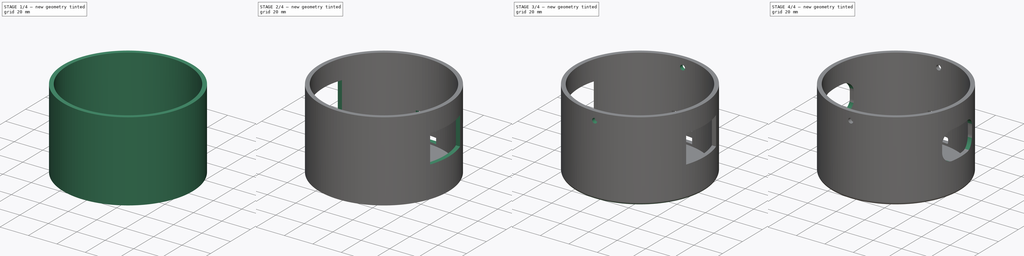
[diagram: build sequence overview — one tinted view per stage of 4, left to right]
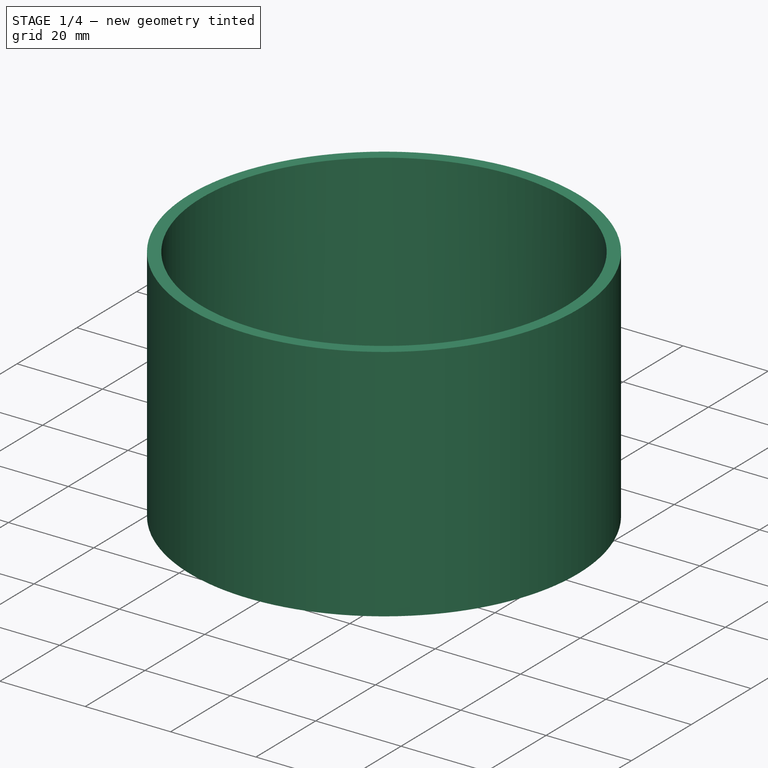
[diagram: stage 1 of 4 — iso view after this stage's code; geometry added in this stage tinted green]
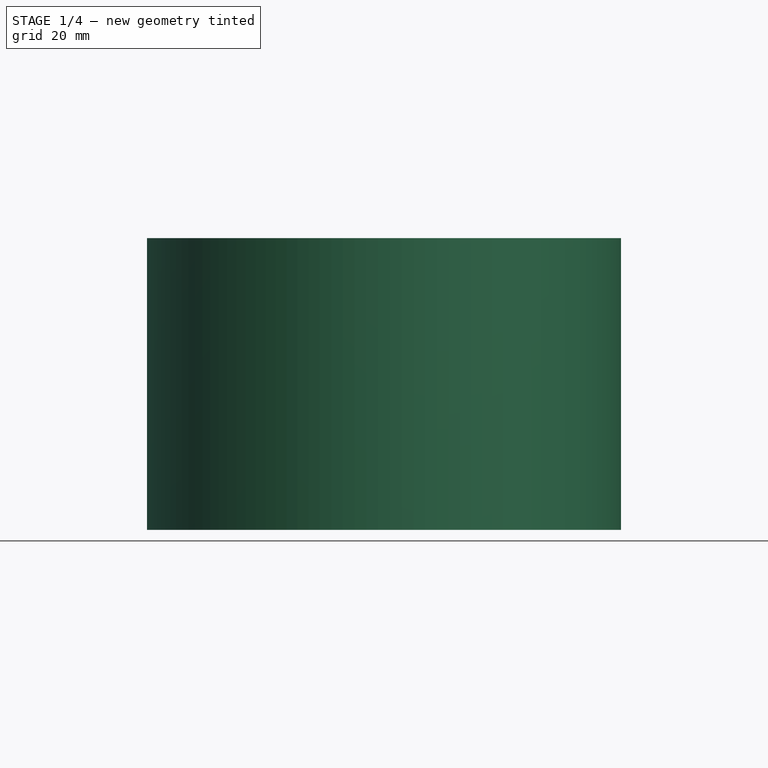
[diagram: stage 1 of 4 — front view after this stage's code; geometry added in this stage tinted green]
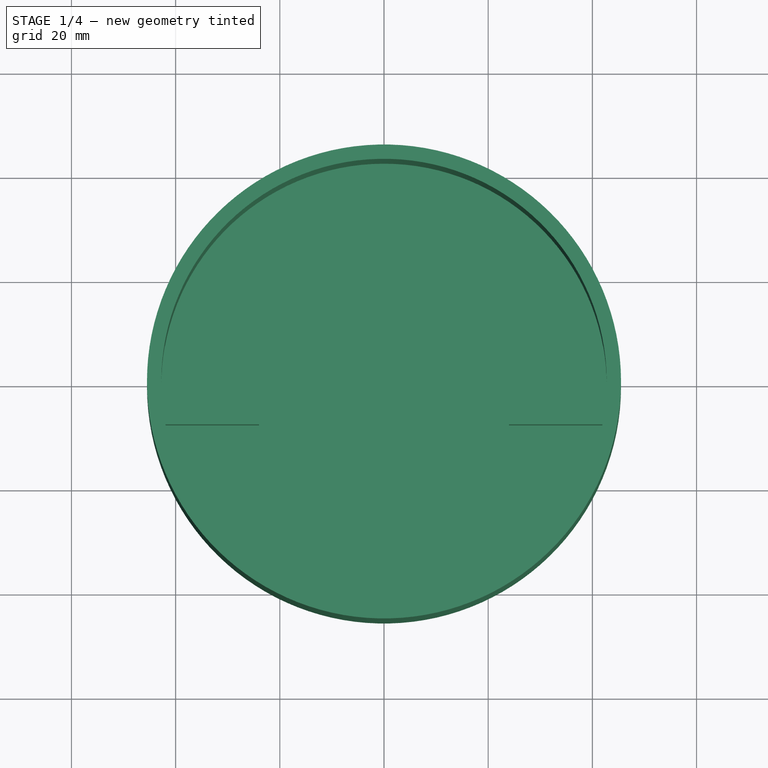
[diagram: stage 1 of 4 — top view after this stage's code; geometry added in this stage tinted green]
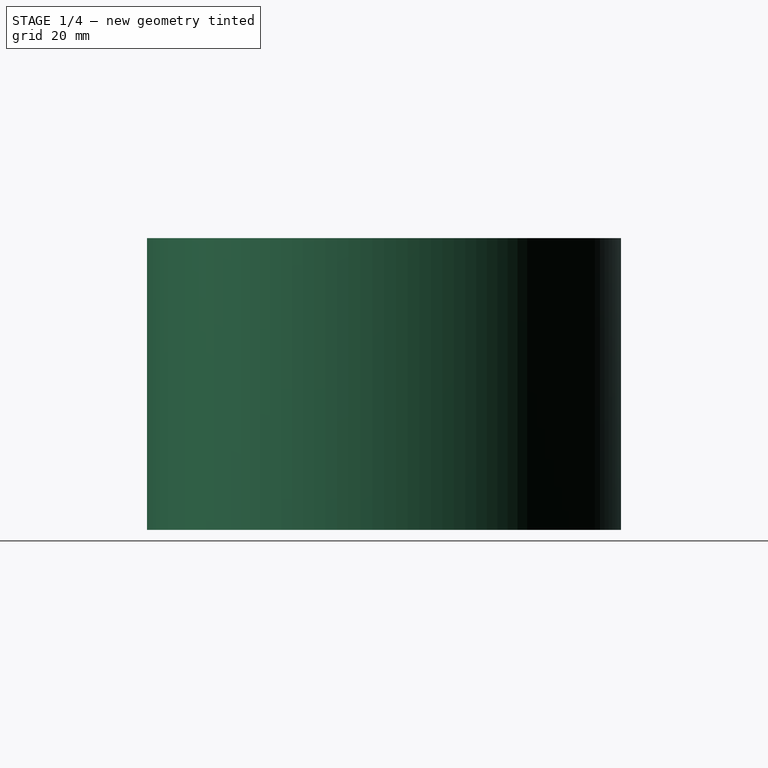
[diagram: stage 1 of 4 — right view after this stage's code; geometry added in this stage tinted green]
FCSTD DOCUMENT  (FreeCAD 1.0R39109 (Git))
Label: luxo_base
License: All rights reserved
LicenseURL: https://en.wikipedia.org/wiki/All_rights_reserved
objects: Sketcher::SketchObject×8, PartDesign::Pocket×5, PartDesign::Fillet×4, PartDesign::Pad×3, PartDesign::Body×1
note: 53 computed .brp shape members not serialized (recipe doc carries the construction recipe); baked Part::Feature solids carry a one-line shape summary decoded from their .brp

FEATURE [Sketcher::SketchObject] Sketch  label="Sketch_Body"
  ArcFitTolerance = 1e-06
  AttachmentSupport = -> [XY_Plane]
  FullyConstrained = true
  MakeInternals = false
  MapMode = 5
  sketch-geometry (2):
    g0: Circle [constr] CenterX=0 CenterY=0 CenterZ=0 NormalX=0 NormalY=0 NormalZ=1 AngleXU=0 Radius=42.5
    g1: Circle CenterX=0 CenterY=0 CenterZ=0 NormalX=0 NormalY=0 NormalZ=1 AngleXU=0 Radius=45.5
  constraints (5):
    c: Diameter(g0) = 85
    c: Coincident(g0,g-1)
    c: Diameter(g1) = 91
    c: Coincident(g1,g0)
    c: Distance(g0,g1) = 3
FEATURE [PartDesign::Pad] Pad  label="001_Body"
  Direction = (0,0,1)
  Length = 56
  Length2 = 10
  Profile = -> Sketch
  ReferenceAxis = -> Sketch [N_Axis]
  Refine = true
  Suppressed = false
  Type = 0
FEATURE [Sketcher::SketchObject] Sketch001  label="Sketch_Wall"
  ArcFitTolerance = 1e-06
  AttachmentSupport = -> [Pad]
  FullyConstrained = true
  MakeInternals = false
  MapMode = 5
  Placement = pos=(0,0,56) rot=(0,0,1;0rad)
  sketch-geometry (1):
    g0: Circle CenterX=0 CenterY=0 CenterZ=0 NormalX=0 NormalY=0 NormalZ=1 AngleXU=0 Radius=42.75
  constraints (2):
    c: Diameter(g0) = 85.5
    c: Coincident(g0,g-1)
FEATURE [PartDesign::Pocket] Pocket  label="002_Wall"
  BaseFeature = -> Pad
  Direction = (0,0,-1)
  Length = 54
  Length2 = 5
  Profile = -> Sketch001
  ReferenceAxis = -> Sketch001 [N_Axis]
  Refine = true
  Suppressed = false
  Type = 0
FEATURE [Sketcher::SketchObject] Sketch002  label="Sketch_LandingPad"
  ArcFitTolerance = 1e-06
  AttachmentSupport = -> [Pocket]
  FullyConstrained = true
  MakeInternals = false
  MapMode = 5
  Placement = pos=(0,0,2) rot=(0,0,1;0rad)
  sketch-geometry (10):
    g0: LineSegment StartX=-44 StartY=-7.5 StartZ=0 EndX=-24 EndY=-7.5 EndZ=0
    g1: LineSegment StartX=-24 StartY=-7.5 StartZ=0 EndX=-24 EndY=7.5 EndZ=0
    g2: LineSegment StartX=-24 StartY=7.5 StartZ=0 EndX=-44 EndY=7.5 EndZ=0
    g3: LineSegment StartX=-44 StartY=7.5 StartZ=0 EndX=-44 EndY=-7.5 EndZ=0
    g4: GeomPoint [constr] X=-34 Y=0 Z=0
    g5: LineSegment StartX=44 StartY=-7.5 StartZ=0 EndX=24 EndY=-7.5 EndZ=0
    g6: LineSegment StartX=24 StartY=-7.5 StartZ=0 EndX=24 EndY=7.5 EndZ=0
    g7: LineSegment StartX=24 StartY=7.5 StartZ=0 EndX=44 EndY=7.5 EndZ=0
    g8: LineSegment StartX=44 StartY=7.5 StartZ=0 EndX=44 EndY=-7.5 EndZ=0
    g9: GeomPoint [constr] X=34 Y=0 Z=0
  constraints (22):
    c: Coincident(g0,g1)
    c: Coincident(g1,g2)
    c: Coincident(g2,g3)
    c: Coincident(g3,g0)
    c: Horizontal(g0)
    c: Horizontal(g2)
    c: Vertical(g1)
    c: Vertical(g3)
    c: Symmetric(g2,g0,g4)
    c: Distance(g1,g3) = 20
    c: Distance(g0,g2) = 15
    c: PointOnObject(g4,g-1)
    c: DistanceX(g4,g-1) = 34
    c: Symmetric(g0,g5,g-2)
    c: Symmetric(g0,g5,g-2)
    c: Symmetric(g1,g6,g-2)
    c: Symmetric(g1,g6,g-2)
    c: Symmetric(g2,g7,g-2)
    c: Symmetric(g2,g7,g-2)
    c: Symmetric(g3,g8,g-2)
    c: Symmetric(g3,g8,g-2)
    c: Symmetric(g4,g9,g-2)
FEATURE [PartDesign::Pad] Pad001  label="003_LandingPad"
  BaseFeature = -> Pocket
  Direction = (0,0,1)
  Length = 12
  Length2 = 10
  Profile = -> Sketch002
  ReferenceAxis = -> Sketch002 [N_Axis]
  Refine = true
  Suppressed = false
  Type = 0
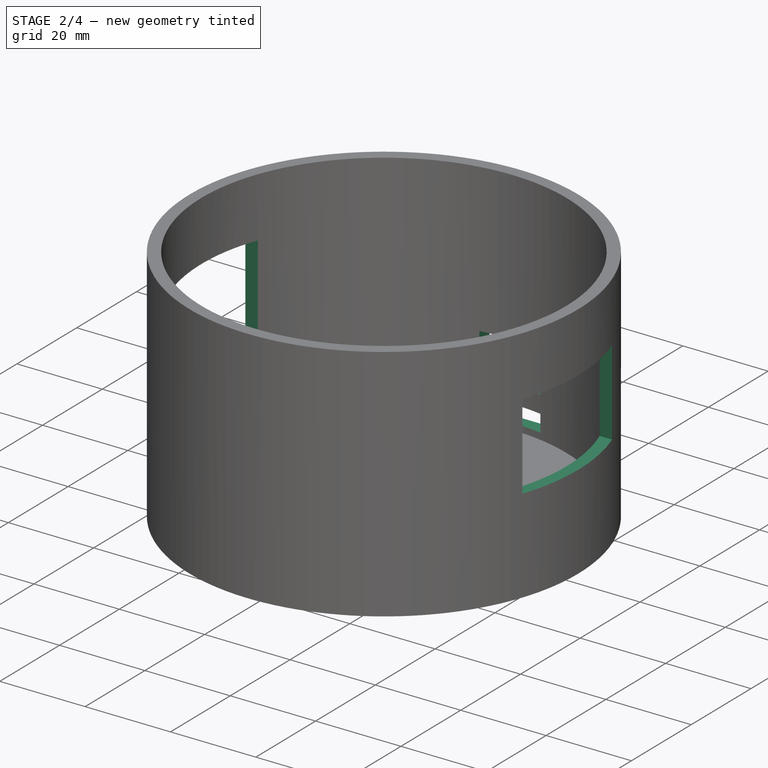
[diagram: stage 2 of 4 — iso view after this stage's code; geometry added in this stage tinted green]
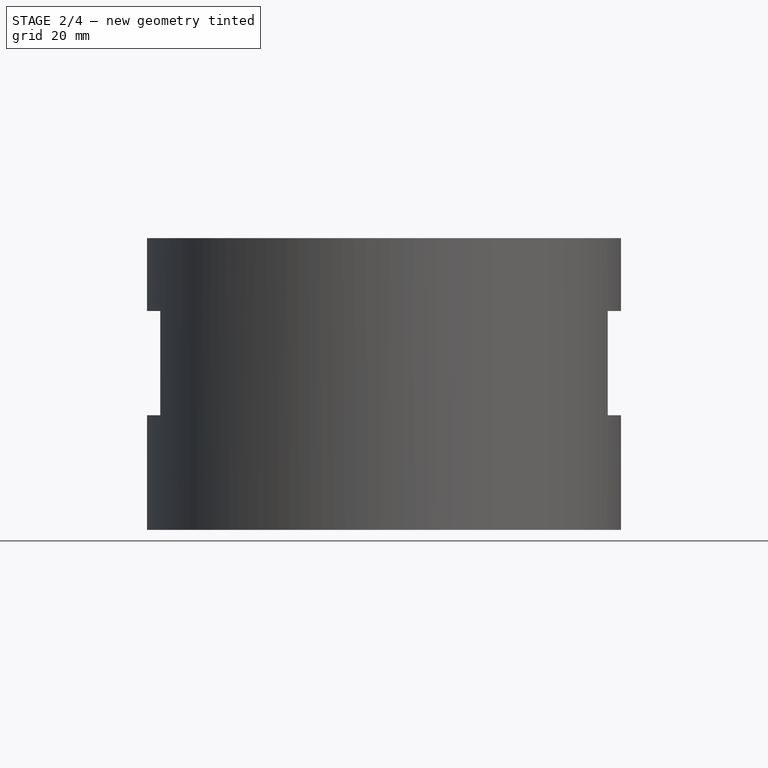
[diagram: stage 2 of 4 — front view after this stage's code; geometry added in this stage tinted green]
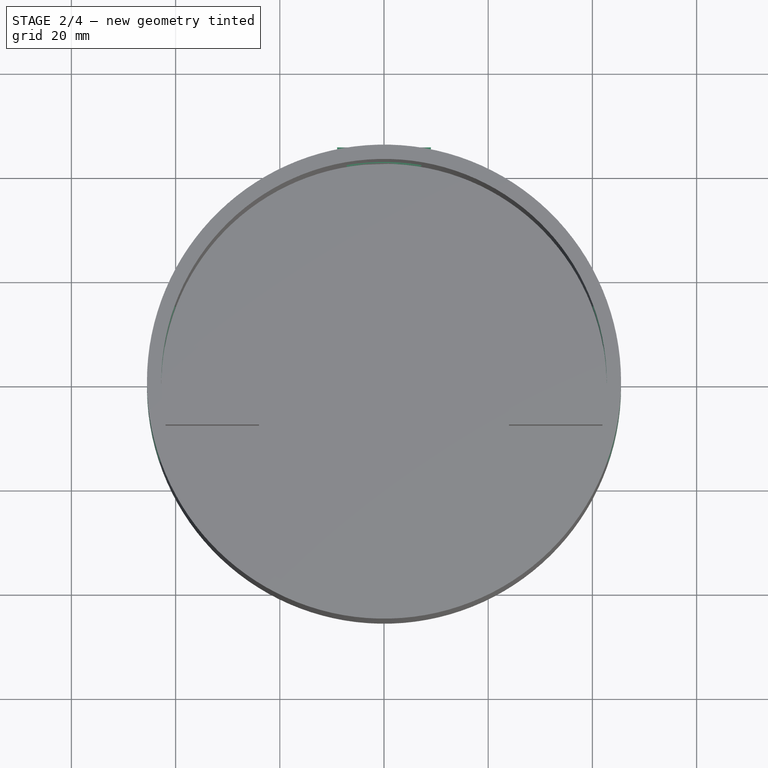
[diagram: stage 2 of 4 — top view after this stage's code; geometry added in this stage tinted green]
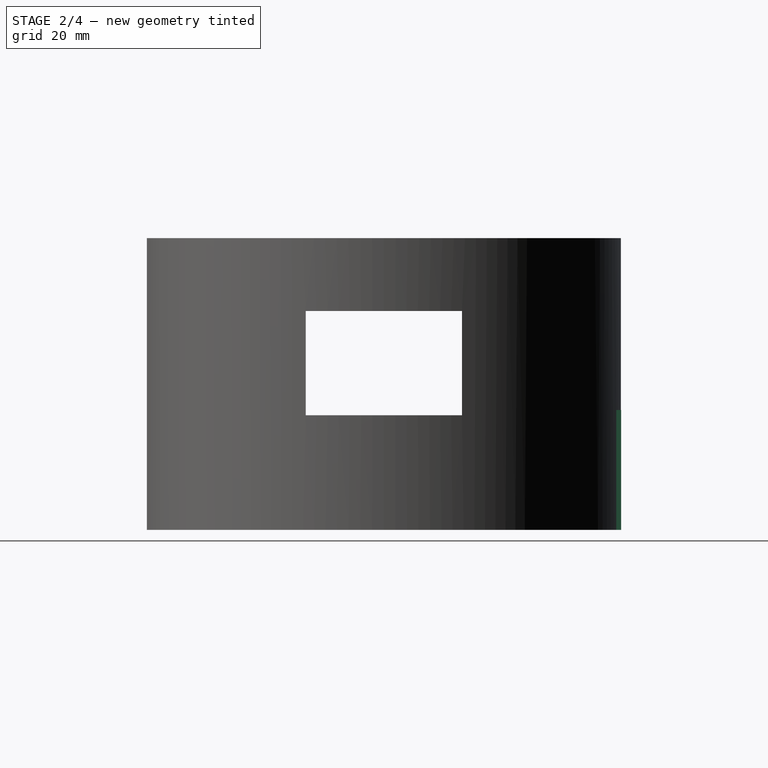
[diagram: stage 2 of 4 — right view after this stage's code; geometry added in this stage tinted green]
FEATURE [Sketcher::SketchObject] Sketch003  label="Sketch_PRHole"
  ArcFitTolerance = 1e-06
  AttachmentSupport = -> [YZ_Plane]
  FullyConstrained = true
  MakeInternals = false
  MapMode = 5
  Placement = pos=(0,0,0) rot=(0.57735,0.57735,0.57735;2.0944rad)
  sketch-geometry (6):
    g0: LineSegment StartX=-15 StartY=22 StartZ=0 EndX=15 EndY=22 EndZ=0
    g1: LineSegment StartX=15 StartY=22 StartZ=0 EndX=15 EndY=42 EndZ=0
    g2: LineSegment StartX=15 StartY=42 StartZ=0 EndX=-15 EndY=42 EndZ=0
    g3: LineSegment StartX=-15 StartY=42 StartZ=0 EndX=-15 EndY=22 EndZ=0
    g4: GeomPoint [constr] X=-1e-16 Y=32 Z=0
    g5: GeomPoint X=0 Y=2 Z=0
  constraints (15):
    c: Coincident(g0,g1)
    c: Coincident(g1,g2)
    c: Coincident(g2,g3)
    c: Coincident(g3,g0)
    c: Horizontal(g0)
    c: Horizontal(g2)
    c: Vertical(g1)
    c: Vertical(g3)
    c: Symmetric(g2,g0,g4)
    c: Distance(g1,g3) = 30
    c: Distance(g0,g2) = 20
    c: PointOnObject(g4,g-2)
    c: PointOnObject(g5,g-2)
    c: DistanceY(g-1,g5) = 2
    c: DistanceY(g5,g4) = 30
FEATURE [PartDesign::Pocket] Pocket001  label="005_PRHole"
  BaseFeature = -> Pad001
  Direction = (-1,0,0)
  Length = 120
  Length2 = 5
  Midplane = true
  Profile = -> Sketch003
  ReferenceAxis = -> Sketch003 [N_Axis]
  Refine = true
  Suppressed = false
  Type = 0
FEATURE [Sketcher::SketchObject] Sketch004  label="Sketch_SW_JackBase"
  ArcFitTolerance = 1e-06
  AttachmentSupport = -> [XY_Plane]
  FullyConstrained = true
  MakeInternals = false
  MapMode = 5
  sketch-geometry (5):
    g0: LineSegment StartX=-9 StartY=43 StartZ=0 EndX=9 EndY=43 EndZ=0
    g1: LineSegment StartX=9 StartY=43 StartZ=0 EndX=9 EndY=45.55 EndZ=0
    g2: LineSegment StartX=9 StartY=45.55 StartZ=0 EndX=-9 EndY=45.55 EndZ=0
    g3: LineSegment StartX=-9 StartY=45.55 StartZ=0 EndX=-9 EndY=43 EndZ=0
    g4: GeomPoint [constr] X=0 Y=44.275 Z=0
  constraints (13):
    c: Coincident(g0,g1)
    c: Coincident(g1,g2)
    c: Coincident(g2,g3)
    c: Coincident(g3,g0)
    c: Horizontal(g0)
    c: Horizontal(g2)
    c: Vertical(g1)
    c: Vertical(g3)
    c: Symmetric(g2,g0,g4)
    c: Distance(g1,g3) = 18
    c: Distance(g0,g2) = 2.55
    c: PointOnObject(g4,g-2)
    c: Distance(g-1,g0) = 43
FEATURE [PartDesign::Pad] Pad002  label="006_SW_JackBase"
  BaseFeature = -> Pocket001
  Direction = (0,0,1)
  Length = 23
  Length2 = 10
  Profile = -> Sketch004
  ReferenceAxis = -> Sketch004 [N_Axis]
  Refine = true
  Suppressed = false
  Type = 0
FEATURE [Sketcher::SketchObject] Sketch005  label="Sketch_SW_JackHole"
  ArcFitTolerance = 1e-06
  AttachmentSupport = -> [Pad002]
  FullyConstrained = true
  MakeInternals = false
  MapMode = 5
  Placement = pos=(0,45.55,0) rot=(0,0.707107,0.707107;3.14159rad)
  sketch-geometry (11):
    g0: LineSegment StartX=-7.15 StartY=3.5 StartZ=0 EndX=7.15 EndY=3.5 EndZ=0
    g1: LineSegment StartX=7.15 StartY=3.5 StartZ=0 EndX=7.15 EndY=7.5 EndZ=0
    g2: LineSegment StartX=7.15 StartY=7.5 StartZ=0 EndX=-7.15 EndY=7.5 EndZ=0
    g3: LineSegment StartX=-7.15 StartY=7.5 StartZ=0 EndX=-7.15 EndY=3.5 EndZ=0
    g4: GeomPoint [constr] X=0 Y=5.5 Z=0
    g5: GeomPoint X=0 Y=2 Z=0
    g6: LineSegment StartX=-7.15 StartY=11.5 StartZ=0 EndX=7.15 EndY=11.5 EndZ=0
    g7: LineSegment StartX=7.15 StartY=11.5 StartZ=0 EndX=7.15 EndY=21.2 EndZ=0
    g8: LineSegment StartX=7.15 StartY=21.2 StartZ=0 EndX=-7.15 EndY=21.2 EndZ=0
    g9: LineSegment StartX=-7.15 StartY=21.2 StartZ=0 EndX=-7.15 EndY=11.5 EndZ=0
    g10: GeomPoint [constr] X=0 Y=16.35 Z=0
  constraints (28):
    c: Coincident(g0,g1)
    c: Coincident(g1,g2)
    c: Coincident(g2,g3)
    c: Coincident(g3,g0)
    c: Horizontal(g0)
    c: Horizontal(g2)
    c: Vertical(g1)
    c: Vertical(g3)
    c: Symmetric(g2,g0,g4)
    c: Distance(g1,g3) = 14.3
    c: Distance(g0,g2) = 4
    c: PointOnObject(g5,g-2)
    c: Distance(g5,g-1) = 2
    c: PointOnObject(g4,g-2)
    c: Distance(g5,g0) = 1.5
    c: Coincident(g6,g7)
    c: Coincident(g7,g8)
    c: Coincident(g8,g9)
    c: Coincident(g9,g6)
    c: Horizontal(g6)
    c: Horizontal(g8)
    c: Vertical(g7)
    c: Vertical(g9)
    c: Symmetric(g8,g6,g10)
    c: Distance(g7,g9) = 14.3
    c: Distance(g6,g8) = 9.7
    c: PointOnObject(g10,g-2)
    c: Distance(g2,g6) = 4
FEATURE [PartDesign::Pocket] Pocket002  label="007_SW_JackHole"
  BaseFeature = -> Pad002
  Direction = (0,-1,2e-16)
  Length = 5
  Length2 = 5
  Profile = -> Sketch005
  ReferenceAxis = -> Sketch005 [N_Axis]
  Refine = true
  Suppressed = false
  Type = 0
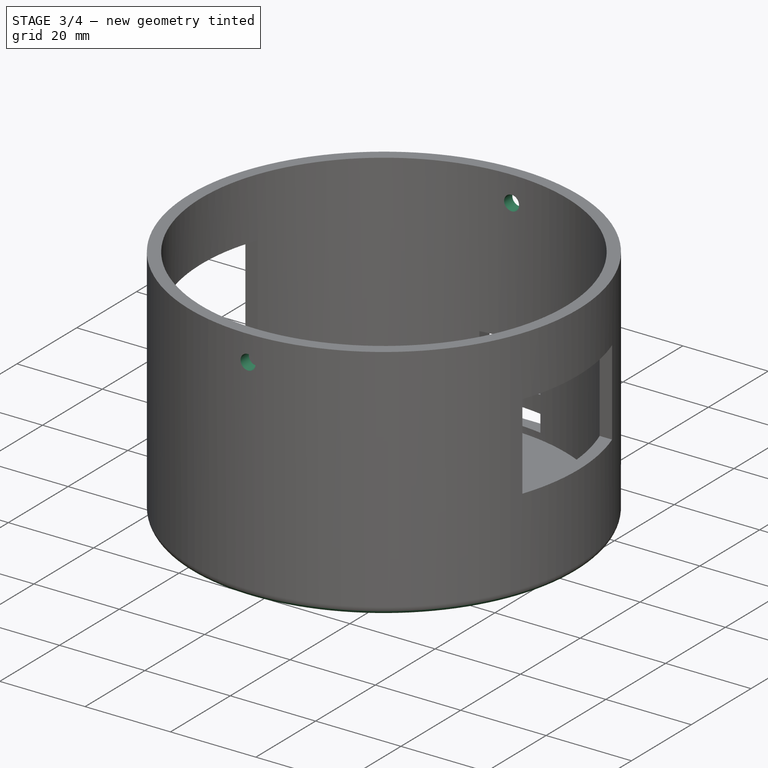
[diagram: stage 3 of 4 — iso view after this stage's code; geometry added in this stage tinted green]
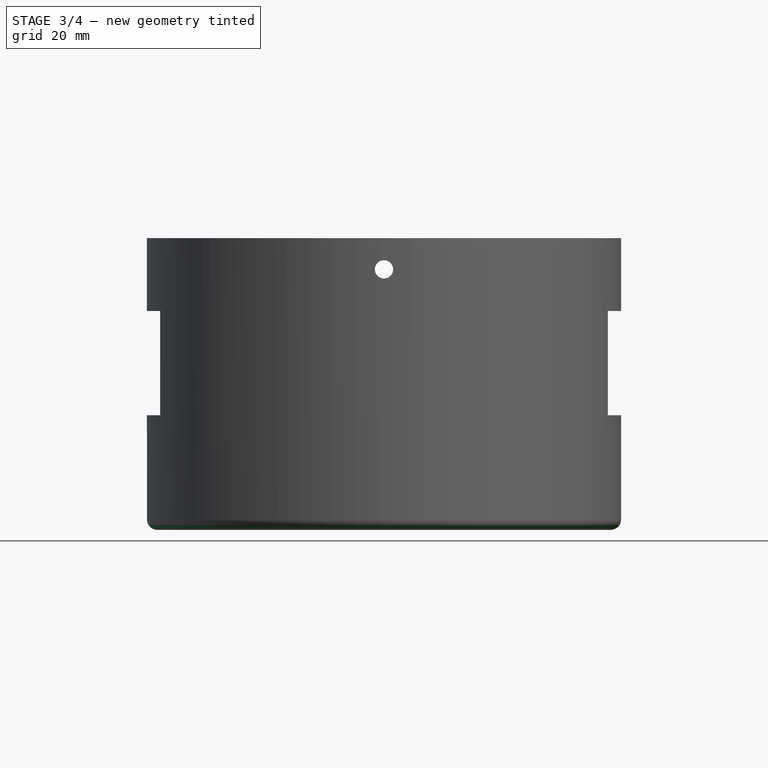
[diagram: stage 3 of 4 — front view after this stage's code; geometry added in this stage tinted green]
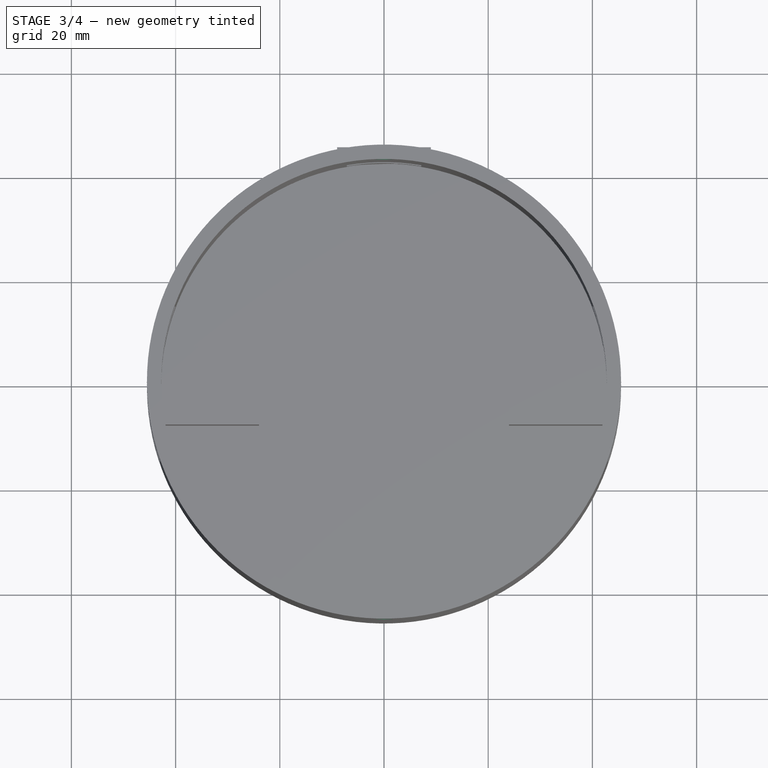
[diagram: stage 3 of 4 — top view after this stage's code; geometry added in this stage tinted green]
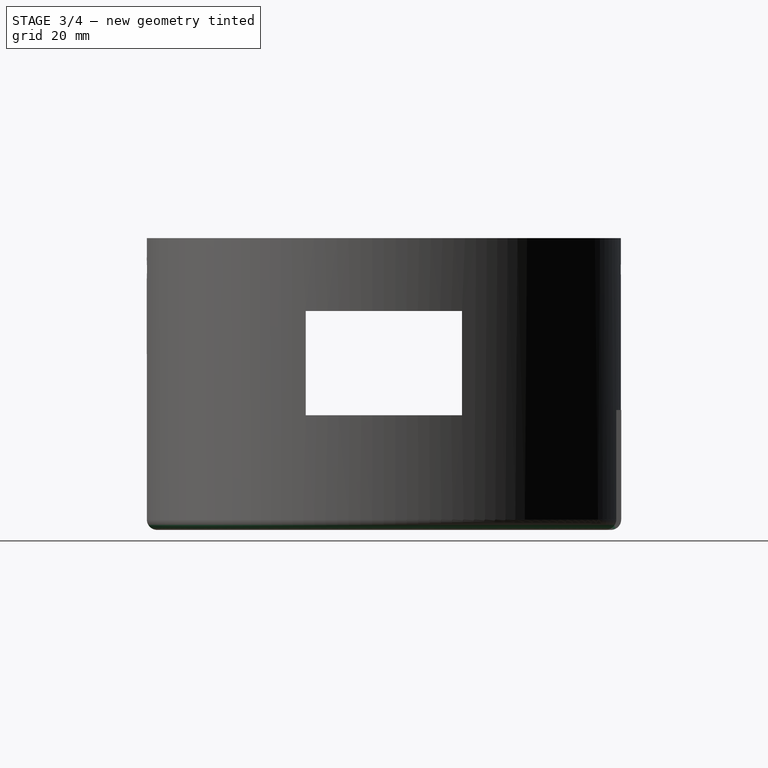
[diagram: stage 3 of 4 — right view after this stage's code; geometry added in this stage tinted green]
FEATURE [Sketcher::SketchObject] Sketch006  label="Sketch_FeetHole"
  ArcFitTolerance = 1e-06
  AttachmentSupport = -> [XY_Plane]
  FullyConstrained = true
  MakeInternals = false
  MapMode = 5
  sketch-geometry (9):
    g0: LineSegment [constr] StartX=-27 StartY=-27 StartZ=0 EndX=27 EndY=-27 EndZ=0
    g1: LineSegment [constr] StartX=27 StartY=-27 StartZ=0 EndX=27 EndY=27 EndZ=0
    g2: LineSegment [constr] StartX=27 StartY=27 StartZ=0 EndX=-27 EndY=27 EndZ=0
    g3: LineSegment [constr] StartX=-27 StartY=27 StartZ=0 EndX=-27 EndY=-27 EndZ=0
    g4: GeomPoint [constr] X=0 Y=0 Z=0
    g5: Circle CenterX=-27 CenterY=27 CenterZ=0 NormalX=0 NormalY=0 NormalZ=1 AngleXU=0 Radius=1.75
    g6: Circle CenterX=27 CenterY=27 CenterZ=0 NormalX=0 NormalY=0 NormalZ=1 AngleXU=0 Radius=1.75
    g7: Circle CenterX=-27 CenterY=-27 CenterZ=0 NormalX=0 NormalY=0 NormalZ=1 AngleXU=0 Radius=1.75
    g8: Circle CenterX=27 CenterY=-27 CenterZ=0 NormalX=0 NormalY=0 NormalZ=1 AngleXU=0 Radius=1.75
  constraints (20):
    c: Coincident(g0,g1)
    c: Coincident(g1,g2)
    c: Coincident(g2,g3)
    c: Coincident(g3,g0)
    c: Horizontal(g0)
    c: Horizontal(g2)
    c: Vertical(g1)
    c: Vertical(g3)
    c: Symmetric(g2,g0,g4)
    c: Distance(g1,g3) = 54
    c: Distance(g0,g2) = 54
    c: Diameter(g5) = 3.5
    c: Coincident(g5,g2)
    c: Equal(g5,g6)
    c: Symmetric(g5,g6,g-2)
    c: Equal(g5,g7)
    c: Symmetric(g5,g7,g-1)
    c: Equal(g6,g8)
    c: Symmetric(g6,g8,g-1)
    c: Coincident(g-1,g4)
FEATURE [Sketcher::SketchObject] Sketch007  label="Sketch_CoverMountScrewHole"
  ArcFitTolerance = 1e-06
  AttachmentSupport = -> [XZ_Plane]
  FullyConstrained = true
  MakeInternals = false
  MapMode = 5
  Placement = pos=(0,0,0) rot=(1,0,0;1.5708rad)
  sketch-geometry (2):
    g0: Circle CenterX=0 CenterY=50 CenterZ=0 NormalX=0 NormalY=0 NormalZ=1 AngleXU=0 Radius=1.75
    g1: GeomPoint [constr] X=0 Y=51.75 Z=0
  constraints (6):
    c: Diameter(g0) = 3.5
    c: PointOnObject(g0,g-2)
    c: Distance(g0,g-1) = 50
    c: PointOnObject(g1,g0)
    c: PointOnObject(g1,g-2)
    c: DistanceY(g-1,g1) = 51.75
FEATURE [PartDesign::Pocket] Pocket003  label="008_CoverMountScrewHole"
  BaseFeature = -> Pocket002
  Direction = (0,1,-2e-16)
  Length = 120
  Length2 = 5
  Midplane = true
  Profile = -> Sketch007
  ReferenceAxis = -> Sketch007 [N_Axis]
  Refine = true
  Suppressed = false
  Type = 0
FEATURE [PartDesign::Fillet] Fillet  label="Fillet_Bottom"
  Base = -> Pocket003 [Edge1,Edge5]
  BaseFeature = -> Pocket003
  Radius = 2
  Refine = true
  SupportTransform = false
  Suppressed = false
  UseAllEdges = false
FEATURE [PartDesign::Fillet] Fillet001  label="Fillet_Jack"
  Base = -> Fillet [Edge58]
  BaseFeature = -> Fillet
  Radius = 2
  Refine = true
  SupportTransform = false
  Suppressed = false
  UseAllEdges = false
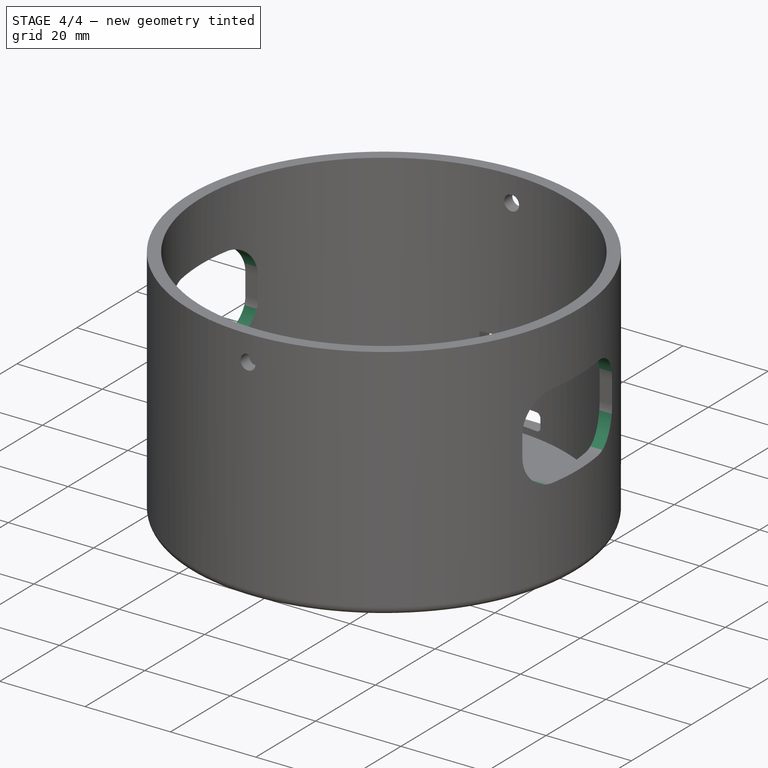
[diagram: stage 4 of 4 — iso view after this stage's code; geometry added in this stage tinted green]
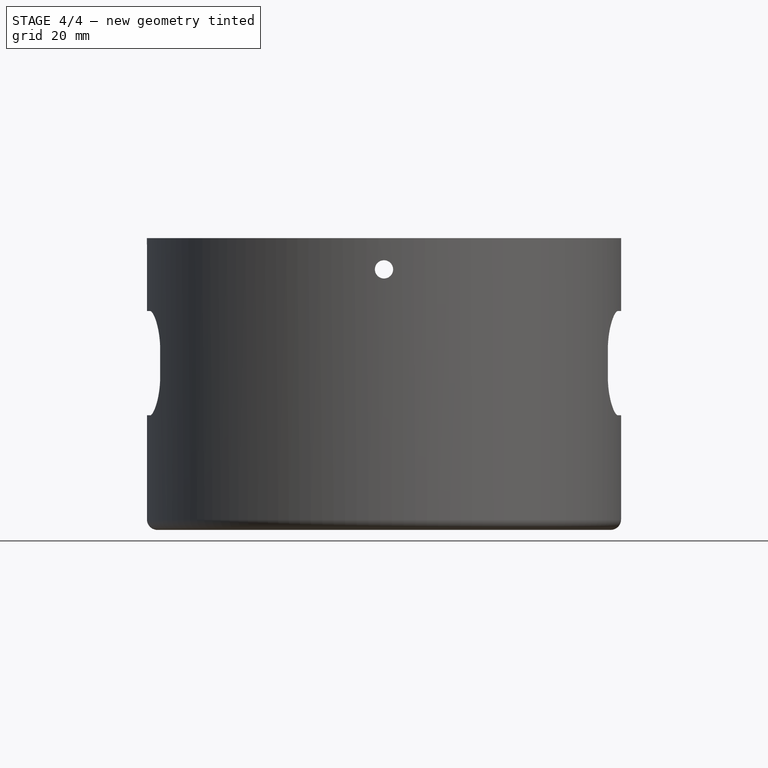
[diagram: stage 4 of 4 — front view after this stage's code; geometry added in this stage tinted green]
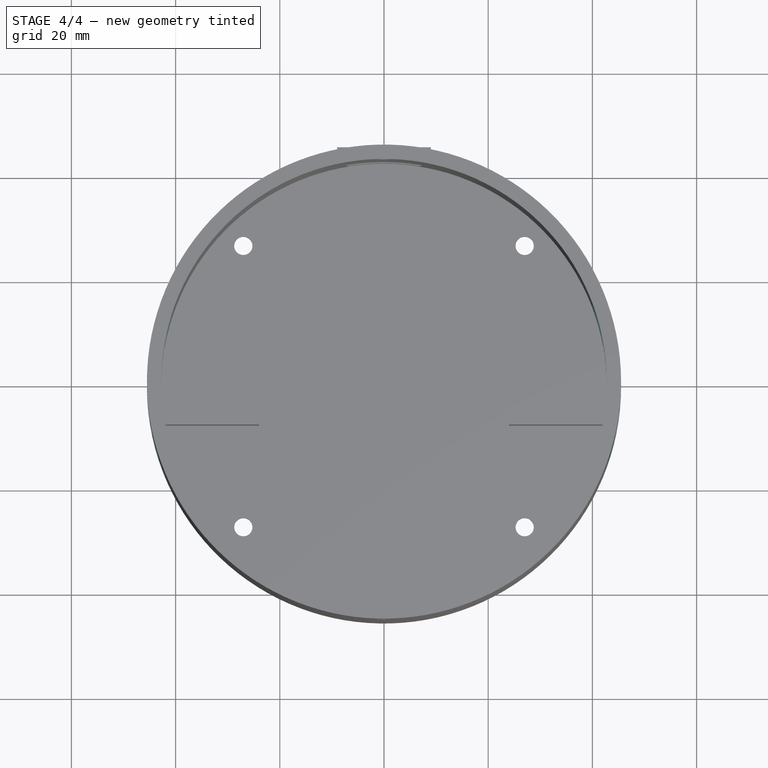
[diagram: stage 4 of 4 — top view after this stage's code; geometry added in this stage tinted green]
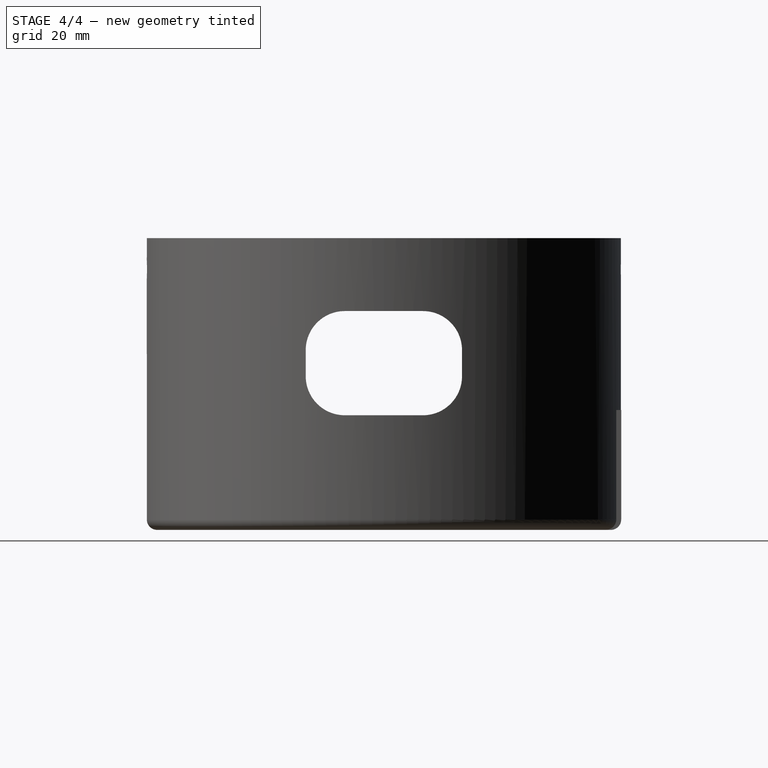
[diagram: stage 4 of 4 — right view after this stage's code; geometry added in this stage tinted green]
FEATURE [PartDesign::Fillet] Fillet002  label="Fillet_USB"
  Base = -> Fillet001 [Edge53,Edge55,Edge57,Edge59]
  BaseFeature = -> Fillet001
  Radius = 1
  Refine = true
  SupportTransform = false
  Suppressed = false
  UseAllEdges = false
FEATURE [PartDesign::Fillet] Fillet003  label="Fillet_PRHole"
  Base = -> Fillet002 [Edge97,Edge98,Edge100,Edge99,Edge120,Edge121,Edge118,Edge119]
  BaseFeature = -> Fillet002
  Radius = 7.5
  Refine = true
  SupportTransform = false
  Suppressed = false
  UseAllEdges = false
FEATURE [PartDesign::Pocket] Pocket004  label="009_FeetHole"
  BaseFeature = -> Fillet003
  Direction = (0,0,-1)
  Length = 5
  Length2 = 5
  Midplane = true
  Profile = -> Sketch006
  ReferenceAxis = -> Sketch006 [N_Axis]
  Refine = true
  Suppressed = false
  Type = 0
FEATURE [PartDesign::Body] Body  label="몸통"
  AllowCompound = false
  Group = -> [Sketch,Pad,Sketch001,Pocket,Sketch002,Pad001,Sketch003,Pocket001,Sketch004,Pad002,Sketch005,Pocket002,Sketch007,Pocket003,Fillet,Fillet001,Fillet002,Fillet003,Sketch006,Pocket004]
  Origin = -> Origin
  Tip = -> Pocket004
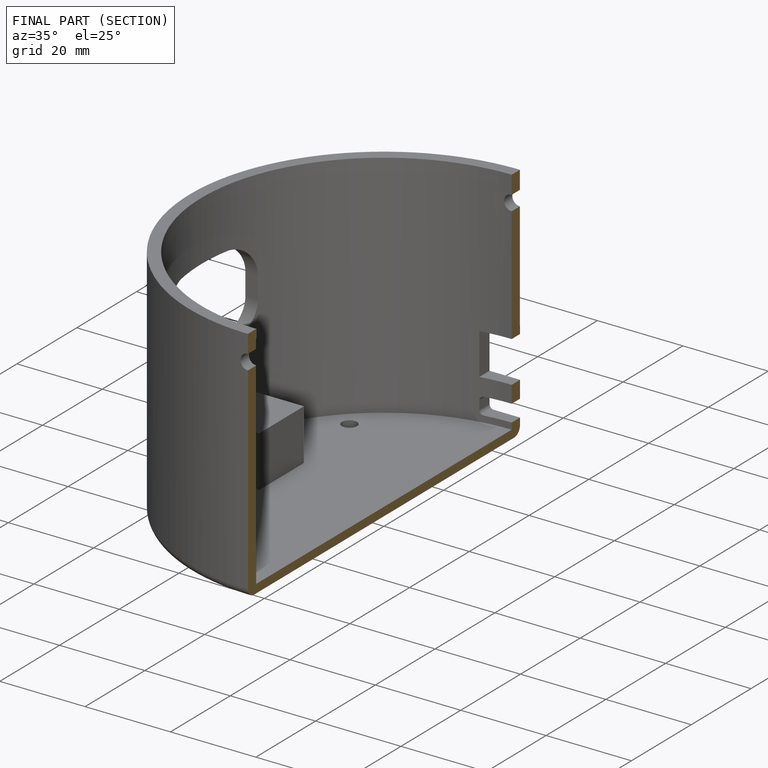
[diagram: finished part — half-section view (interior)]
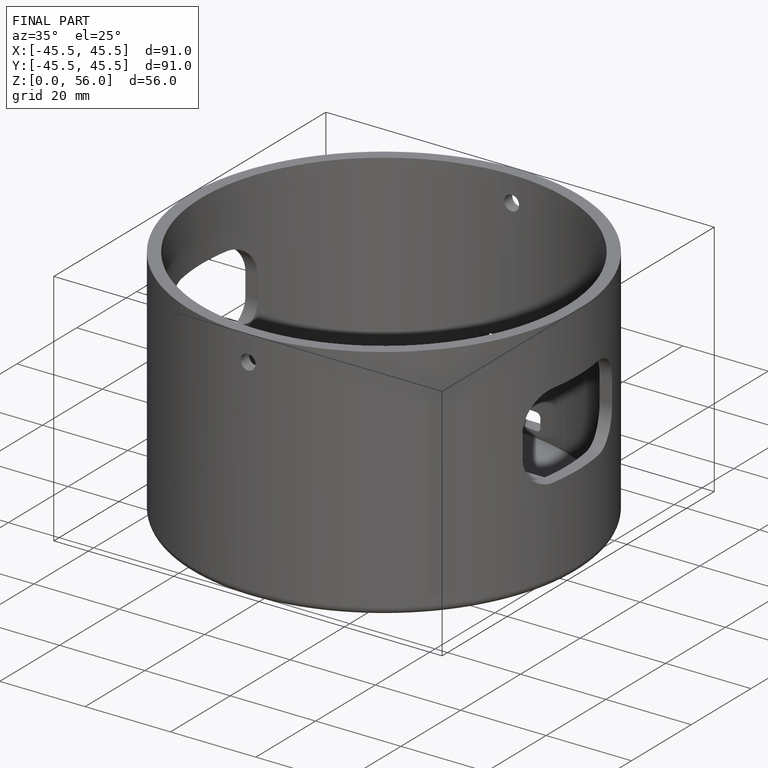
[diagram: finished part — iso view with bounding-box wireframe]
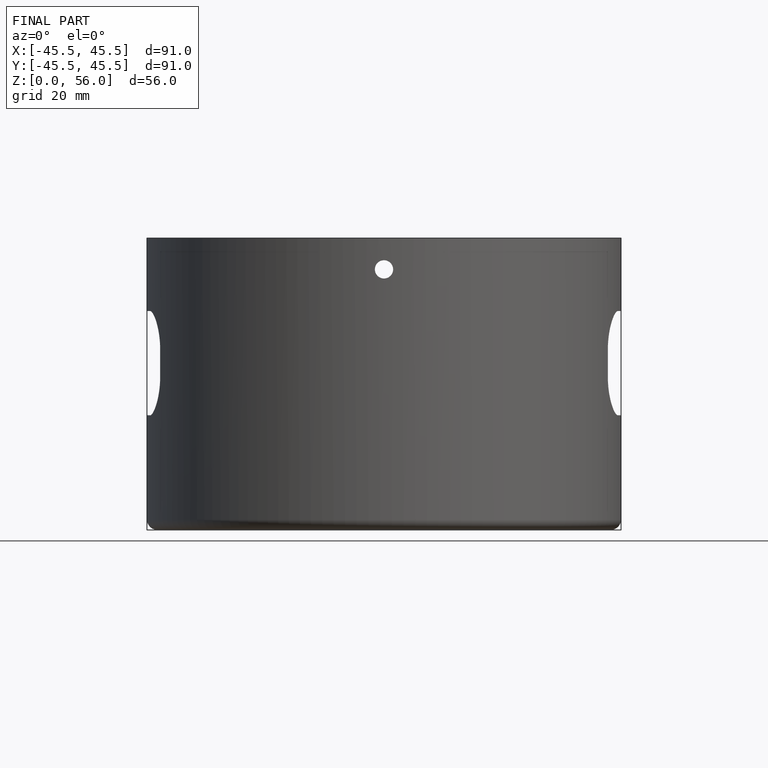
[diagram: finished part — front view with bounding-box wireframe]
